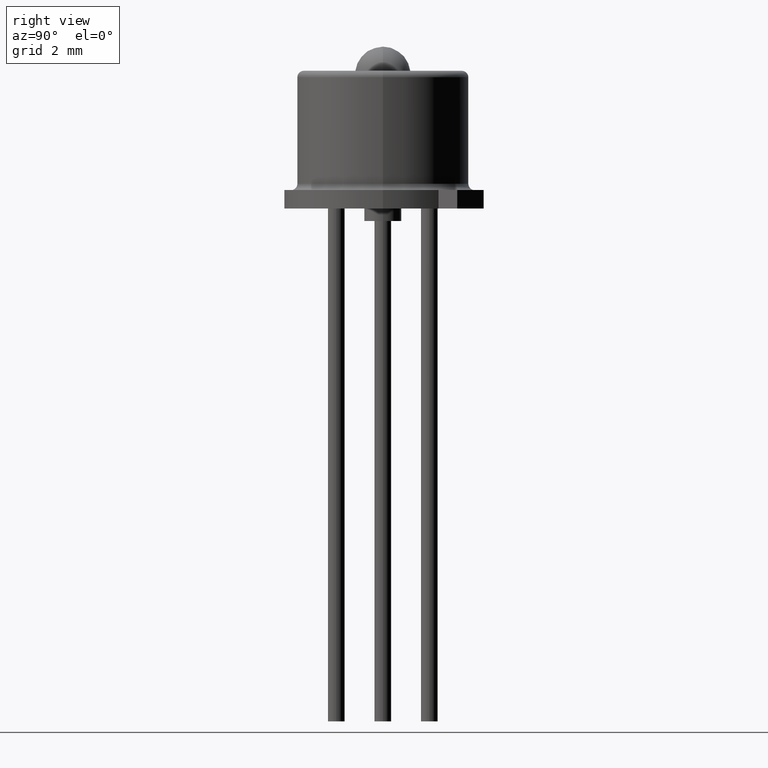
[diagram: clean part render]
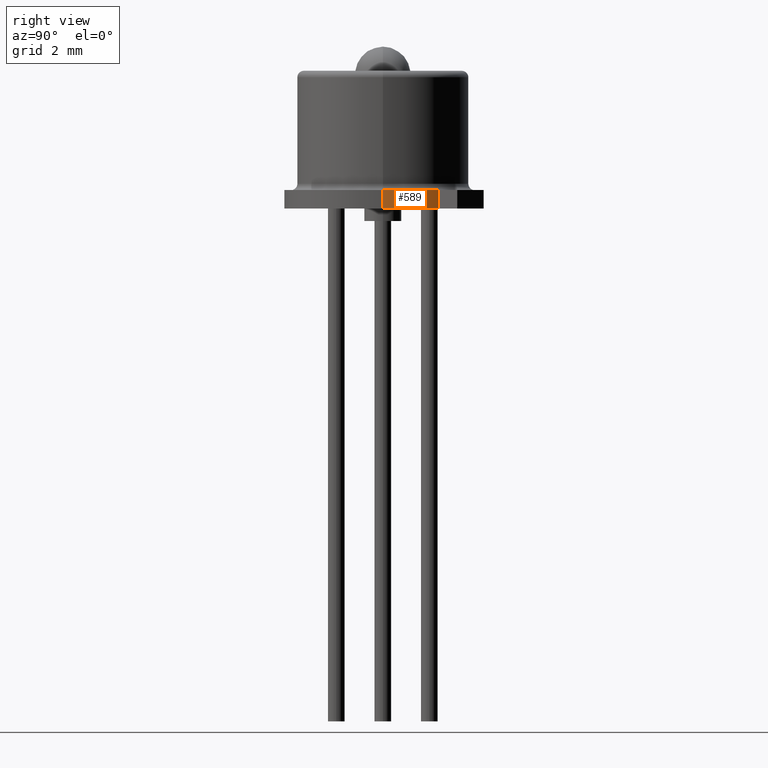
[diagram: same view with one face highlighted and labeled with its STEP entity id]
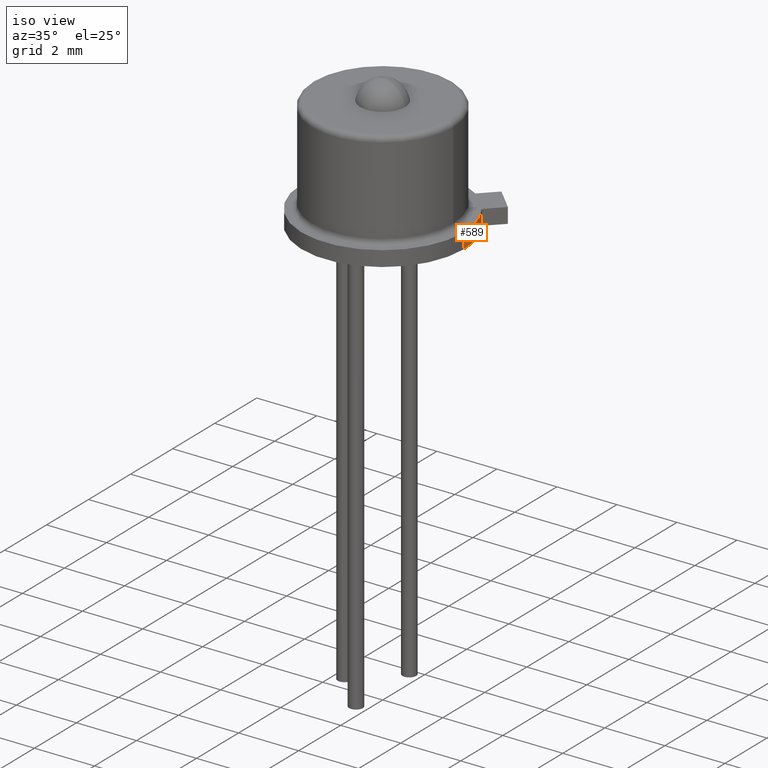
[diagram: same view with one face highlighted and labeled with its STEP entity id]
A machine part, right view. The second image highlights one B-rep face of the part: STEP entity #589.
A second angle (iso view) of the same face is appended — the face is thin or edge-on in the first view.
In plain terms, the highlighted cylindrical surface (partial cylindrical patch) has radius 2.7051 mm, axis along (-0, -0, -1).
Its self-contained STEP definition (entity closure, byte-faithful):
#40 = ORIENTED_EDGE ( 'NONE', *, *, #535, .F. ) ;
#41 = ORIENTED_EDGE ( 'NONE', *, *, #536, .T. ) ;
#42 = ORIENTED_EDGE ( 'NONE', *, *, #537, .T. ) ;
#43 = ORIENTED_EDGE ( 'NONE', *, *, #538, .F. ) ;
#185 = VERTEX_POINT ( 'NONE', #1539 ) ;
#186 = VERTEX_POINT ( 'NONE', #1540 ) ;
#191 = VERTEX_POINT ( 'NONE', #1545 ) ;
#192 = VERTEX_POINT ( 'NONE', #1546 ) ;
#220 = EDGE_LOOP ( 'NONE', ( #40, #41, #42, #43 ) ) ;
#267 = DIRECTION ( 'NONE',  ( -0.0000000000000000000, -0.0000000000000000000, -1.000000000000000000 ) ) ;
#268 = DIRECTION ( 'NONE',  ( -0.0000000000000000000, -0.0000000000000000000, -1.000000000000000000 ) ) ;
#269 = CARTESIAN_POINT ( 'NONE',  ( 0.1065000000000000100, 1.304248841091931400E-017, 0.01996900000000000100 ) ) ;
#270 = CARTESIAN_POINT ( 'NONE',  ( 0.0000000000000000000, 0.0000000000000000000, 0.01996900000000000100 ) ) ;
#271 = DIRECTION ( 'NONE',  ( 0.0000000000000000000, 0.0000000000000000000, 1.000000000000000000 ) ) ;
#272 = DIRECTION ( 'NONE',  ( 1.000000000000000000, 0.0000000000000000000, 0.0000000000000000000 ) ) ;
#273 = CARTESIAN_POINT ( 'NONE',  ( 0.08809145647857775900, 0.05985102585154945100, 0.01996900000000000100 ) ) ;
#275 = CARTESIAN_POINT ( 'NONE',  ( 0.0000000000000000000, 0.0000000000000000000, 0.0000000000000000000 ) ) ;
#276 = DIRECTION ( 'NONE',  ( 0.0000000000000000000, 0.0000000000000000000, 1.000000000000000000 ) ) ;
#277 = DIRECTION ( 'NONE',  ( 1.000000000000000000, 0.0000000000000000000, 0.0000000000000000000 ) ) ;
#535 = EDGE_CURVE ( 'NONE', #185, #186, #1429, .T. ) ;
#536 = EDGE_CURVE ( 'NONE', #185, #191, #1428, .T. ) ;
#537 = EDGE_CURVE ( 'NONE', #191, #192, #1427, .T. ) ;
#538 = EDGE_CURVE ( 'NONE', #186, #192, #1432, .T. ) ;
#589 = ADVANCED_FACE ( 'NONE', ( #1253 ), #1262, .T. ) ;
#669 = AXIS2_PLACEMENT_3D ( 'NONE', #270, #271, #272 ) ;
#670 = AXIS2_PLACEMENT_3D ( 'NONE', #275, #276, #277 ) ;
#926 = AXIS2_PLACEMENT_3D ( 'NONE', #1063, #1064, #1073 ) ;
#1063 = CARTESIAN_POINT ( 'NONE',  ( 0.0000000000000000000, 0.0000000000000000000, 0.01996900000000000100 ) ) ;
#1064 = DIRECTION ( 'NONE',  ( -0.0000000000000000000, -0.0000000000000000000, -1.000000000000000000 ) ) ;
#1073 = DIRECTION ( 'NONE',  ( -1.000000000000000000, 0.0000000000000000000, 0.0000000000000000000 ) ) ;
#1253 = FACE_OUTER_BOUND ( 'NONE', #220, .T. ) ;
#1262 = CYLINDRICAL_SURFACE ( 'NONE', #926, 0.1065000000000000100 ) ;
#1427 = CIRCLE ( 'NONE', #670, 0.1065000000000000100 ) ;
#1428 = LINE ( 'NONE', #269, #1431 ) ;
#1429 = CIRCLE ( 'NONE', #669, 0.1065000000000000100 ) ;
#1431 = VECTOR ( 'NONE', #268, 39.37007874015748100 ) ;
#1432 = LINE ( 'NONE', #273, #1434 ) ;
#1434 = VECTOR ( 'NONE', #267, 39.37007874015748100 ) ;
#1539 = CARTESIAN_POINT ( 'NONE',  ( 0.1065000000000000100, 1.304248841091931400E-017, 0.01996900000000000100 ) ) ;
#1540 = CARTESIAN_POINT ( 'NONE',  ( 0.08809145647857775900, 0.05985102585154945100, 0.01996900000000000100 ) ) ;
#1545 = CARTESIAN_POINT ( 'NONE',  ( 0.1065000000000000100, 1.304248841091931400E-017, 0.0000000000000000000 ) ) ;
#1546 = CARTESIAN_POINT ( 'NONE',  ( 0.08809145647857775900, 0.05985102585154945100, 0.0000000000000000000 ) ) ;